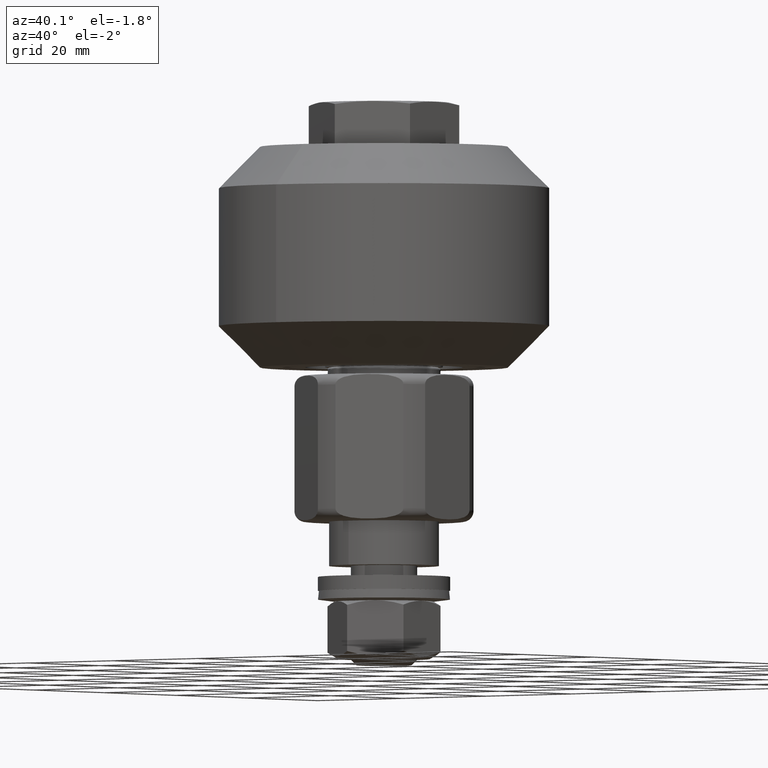
[diagram: clean part render]
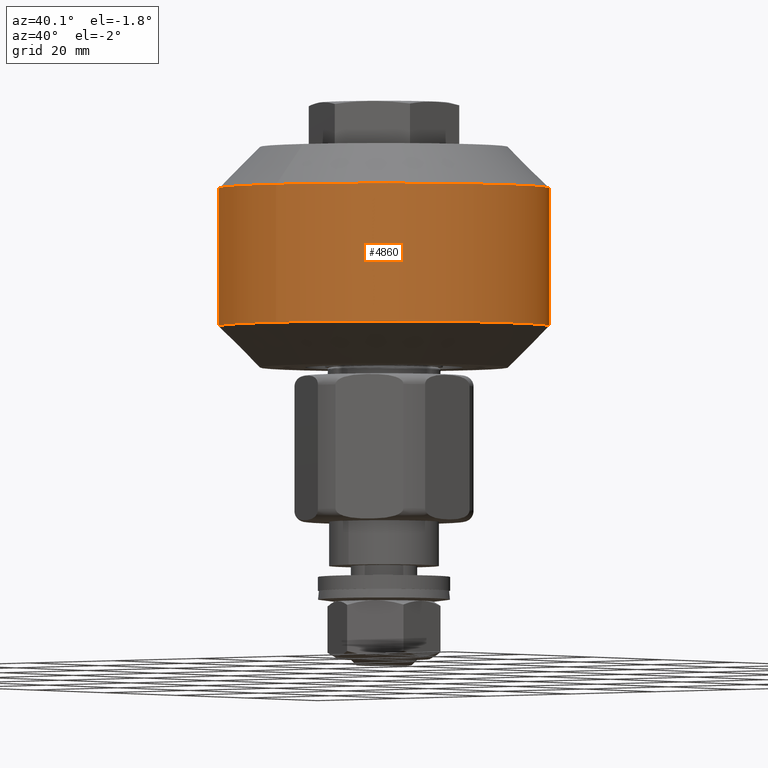
[diagram: same view with one face highlighted and labeled with its STEP entity id]
A machine part, auxiliary view. The second image highlights one B-rep face of the part: STEP entity #4860.
In plain terms, the highlighted cylindrical surface (bore or boss wall) has radius 30 mm, axis along (-0, -0, 1).
Its self-contained STEP definition (entity closure, byte-faithful):
#224=CYLINDRICAL_SURFACE('',#5377,30.);
#472=FACE_OUTER_BOUND('',#749,.T.);
#749=EDGE_LOOP('',(#3393,#3394,#3395,#3396));
#1043=CIRCLE('',#5376,30.);
#1044=CIRCLE('',#5378,30.);
#1313=LINE('',#7441,#1603);
#1603=VECTOR('',#6029,30.);
#2034=VERTEX_POINT('',#7435);
#2035=VERTEX_POINT('',#7439);
#2571=EDGE_CURVE('',#2034,#2034,#1043,.T.);
#2573=EDGE_CURVE('',#2035,#2035,#1044,.T.);
#2574=EDGE_CURVE('',#2035,#2034,#1313,.T.);
#3393=ORIENTED_EDGE('',*,*,#2573,.F.);
#3394=ORIENTED_EDGE('',*,*,#2574,.T.);
#3395=ORIENTED_EDGE('',*,*,#2571,.T.);
#3396=ORIENTED_EDGE('',*,*,#2574,.F.);
#4860=ADVANCED_FACE('',(#472),#224,.T.);
#5376=AXIS2_PLACEMENT_3D('',#7436,#6022,#6023);
#5377=AXIS2_PLACEMENT_3D('',#7438,#6025,#6026);
#5378=AXIS2_PLACEMENT_3D('',#7440,#6027,#6028);
#6022=DIRECTION('center_axis',(1.,0.,0.));
#6023=DIRECTION('ref_axis',(0.,1.,0.));
#6025=DIRECTION('center_axis',(1.,0.,0.));
#6026=DIRECTION('ref_axis',(0.,1.,0.));
#6027=DIRECTION('center_axis',(1.,0.,0.));
#6028=DIRECTION('ref_axis',(0.,1.,0.));
#6029=DIRECTION('',(-1.,0.,0.));
#7435=CARTESIAN_POINT('',(-12.5,-30.,-3.67394039744206E-15));
#7436=CARTESIAN_POINT('Origin',(-12.5,0.,0.));
#7438=CARTESIAN_POINT('Origin',(0.,0.,0.));
#7439=CARTESIAN_POINT('',(12.5,-30.,-3.67394039744206E-15));
#7440=CARTESIAN_POINT('Origin',(12.5,0.,0.));
#7441=CARTESIAN_POINT('',(0.,-30.,-3.67394039744206E-15));